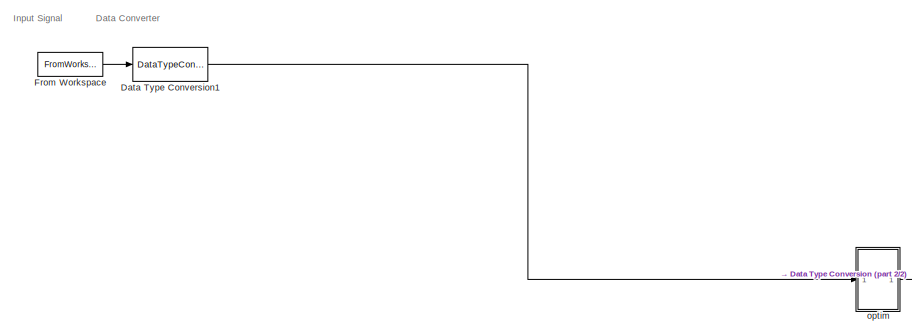
[diagram: root canvas - part 1/2, left side, full height]
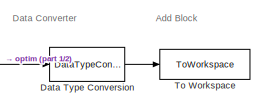
[diagram: root canvas - part 2/2, bottom right region]
MODEL slx_897801d703a7
KIND model
CONFIG AbsTol = auto
CONFIG EnableMultiTasking = off
CONFIG FixedStep = auto
CONFIG MaxStep = auto
CONFIG MinStep = auto
CONFIG RelTol = 1e-3
CONFIG SampleTimeConstraint = Unconstrained
CONFIG SolverName = VariableStepAuto
CONFIG StartTime = 0.0
CONFIG StopTime = 10
BLOCK [DataTypeConversion] Data Type Conversion
  OutDataTypeStr = double
  RndMeth = Floor
  SaturateOnIntegerOverflow = off
BLOCK [DataTypeConversion] Data Type Conversion1
  OutDataTypeStr = fixdt(1,W,D)
  RndMeth = Floor
  SaturateOnIntegerOverflow = off
BLOCK [FromWorkspace] From Workspace
  Interpolate = off
  OutputAfterFinalValue = Setting to zero
  SampleTime = 1
  VariableName = sig_in
  ZeroCross = off
BLOCK [ToWorkspace] To Workspace
  FixptAsFi = on
  MaxDataPoints = inf
  SampleTime = -1
  VariableName = simout
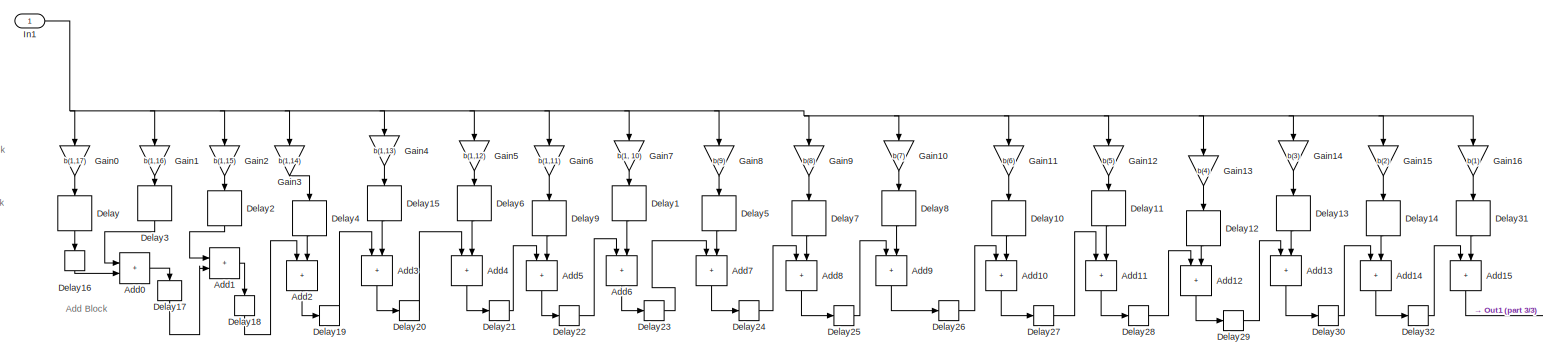
[diagram: optim - part 1/3, most of the canvas]
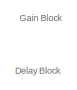
[diagram: optim - part 2/3, middle left region]
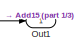
[diagram: optim - part 3/3, bottom right region]
BLOCK [SubSystem] optim
BLOCK [Sum] optim/Add0
  AccumDataTypeStr = fixdt(1,W,D)
  IconShape = rectangular
  OutDataTypeStr = fixdt(1,W,D)
BLOCK [Sum] optim/Add1
  AccumDataTypeStr = fixdt(1,W,D)
  IconShape = rectangular
  OutDataTypeStr = fixdt(1,W,D)
BLOCK [Sum] optim/Add10
  AccumDataTypeStr = fixdt(1,W,D)
  IconShape = rectangular
  NameLocation = left
  OutDataTypeStr = fixdt(1,W,D)
BLOCK [Sum] optim/Add11
  AccumDataTypeStr = fixdt(1,W,D)
  IconShape = rectangular
  NameLocation = left
  OutDataTypeStr = fixdt(1,W,D)
BLOCK [Sum] optim/Add12
  AccumDataTypeStr = fixdt(1,W,D)
  IconShape = rectangular
  NameLocation = left
  OutDataTypeStr = fixdt(1,W,D)
BLOCK [Sum] optim/Add13
  AccumDataTypeStr = fixdt(1,W,D)
  IconShape = rectangular
  NameLocation = left
  OutDataTypeStr = fixdt(1,W,D)
BLOCK [Sum] optim/Add14
  AccumDataTypeStr = fixdt(1,W,D)
  IconShape = rectangular
  NameLocation = left
  OutDataTypeStr = fixdt(1,W,D)
BLOCK [Sum] optim/Add15
  AccumDataTypeStr = fixdt(1,W,D)
  IconShape = rectangular
  NameLocation = left
  OutDataTypeStr = fixdt(1,W,D)
BLOCK [Sum] optim/Add2
  AccumDataTypeStr = fixdt(1,W,D)
  IconShape = rectangular
  NameLocation = left
  OutDataTypeStr = fixdt(1,W,D)
BLOCK [Sum] optim/Add3
  AccumDataTypeStr = fixdt(1,W,D)
  IconShape = rectangular
  NameLocation = left
  OutDataTypeStr = fixdt(1,W,D)
BLOCK [Sum] optim/Add4
  AccumDataTypeStr = fixdt(1,W,D)
  IconShape = rectangular
  NameLocation = left
  OutDataTypeStr = fixdt(1,W,D)
BLOCK [Sum] optim/Add5
  AccumDataTypeStr = fixdt(1,W,D)
  IconShape = rectangular
  NameLocation = left
  OutDataTypeStr = fixdt(1,W,D)
BLOCK [Sum] optim/Add6
  AccumDataTypeStr = fixdt(1,W,D)
  IconShape = rectangular
  NameLocation = left
  OutDataTypeStr = fixdt(1,W,D)
BLOCK [Sum] optim/Add7
  AccumDataTypeStr = fixdt(1,W,D)
  IconShape = rectangular
  NameLocation = left
  OutDataTypeStr = fixdt(1,W,D)
BLOCK [Sum] optim/Add8
  AccumDataTypeStr = fixdt(1,W,D)
  IconShape = rectangular
  NameLocation = left
  OutDataTypeStr = fixdt(1,W,D)
BLOCK [Sum] optim/Add9
  AccumDataTypeStr = fixdt(1,W,D)
  IconShape = rectangular
  NameLocation = left
  OutDataTypeStr = fixdt(1,W,D)
BLOCK [Delay] optim/Delay
  DelayLength = 1
  InputPortMap = u0
  NameLocation = left
BLOCK [Delay] optim/Delay1
  DelayLength = 1
  InputPortMap = u0
  NameLocation = left
BLOCK [Delay] optim/Delay10
  DelayLength = 1
  InputPortMap = u0
  NameLocation = left
BLOCK [Delay] optim/Delay11
  DelayLength = 1
  InputPortMap = u0
  NameLocation = left
BLOCK [Delay] optim/Delay12
  DelayLength = 1
  InputPortMap = u0
  NameLocation = left
BLOCK [Delay] optim/Delay13
  DelayLength = 1
  InputPortMap = u0
  NameLocation = left
BLOCK [Delay] optim/Delay14
  DelayLength = 1
  InputPortMap = u0
  NameLocation = left
BLOCK [Delay] optim/Delay15
  DelayLength = 1
  InputPortMap = u0
  NameLocation = left
BLOCK [Delay] optim/Delay16
  DelayLength = 1
  InputPortMap = u0
  NameLocation = left
BLOCK [Delay] optim/Delay17
  DelayLength = 1
  InputPortMap = u0
  NameLocation = left
BLOCK [Delay] optim/Delay18
  DelayLength = 1
  InputPortMap = u0
  NameLocation = left
BLOCK [Delay] optim/Delay19
  DelayLength = 1
  InputPortMap = u0
BLOCK [Delay] optim/Delay2
  DelayLength = 1
  InputPortMap = u0
  NameLocation = left
BLOCK [Delay] optim/Delay20
  DelayLength = 1
  InputPortMap = u0
BLOCK [Delay] optim/Delay21
  DelayLength = 1
  InputPortMap = u0
BLOCK [Delay] optim/Delay22
  DelayLength = 1
  InputPortMap = u0
BLOCK [Delay] optim/Delay23
  DelayLength = 1
  InputPortMap = u0
BLOCK [Delay] optim/Delay24
  DelayLength = 1
  InputPortMap = u0
BLOCK [Delay] optim/Delay25
  DelayLength = 1
  InputPortMap = u0
BLOCK [Delay] optim/Delay26
  DelayLength = 1
  InputPortMap = u0
BLOCK [Delay] optim/Delay27
  DelayLength = 1
  InputPortMap = u0
BLOCK [Delay] optim/Delay28
  DelayLength = 1
  InputPortMap = u0
BLOCK [Delay] optim/Delay29
  DelayLength = 1
  InputPortMap = u0
BLOCK [Delay] optim/Delay3
  DelayLength = 1
  InputPortMap = u0
  NameLocation = left
BLOCK [Delay] optim/Delay30
  DelayLength = 1
  InputPortMap = u0
BLOCK [Delay] optim/Delay31
  DelayLength = 1
  InputPortMap = u0
  NameLocation = left
BLOCK [Delay] optim/Delay32
  DelayLength = 1
  InputPortMap = u0
BLOCK [Delay] optim/Delay4
  DelayLength = 1
  InputPortMap = u0
  NameLocation = left
BLOCK [Delay] optim/Delay5
  DelayLength = 1
  InputPortMap = u0
  NameLocation = left
BLOCK [Delay] optim/Delay6
  DelayLength = 1
  InputPortMap = u0
  NameLocation = left
BLOCK [Delay] optim/Delay7
  DelayLength = 1
  InputPortMap = u0
  NameLocation = left
BLOCK [Delay] optim/Delay8
  DelayLength = 1
  InputPortMap = u0
  NameLocation = left
BLOCK [Delay] optim/Delay9
  DelayLength = 1
  InputPortMap = u0
  NameLocation = left
BLOCK [Gain] optim/Gain0
  Gain = b(1,17)
  NameLocation = left
  OutDataTypeStr = fixdt(1,Wc,Dc)
  ParamDataTypeStr = fixdt(1,Wg,Dg)
BLOCK [Gain] optim/Gain1
  Gain = b(1,16)
  NameLocation = left
  OutDataTypeStr = fixdt(1,Wc,Dc)
  ParamDataTypeStr = fixdt(1,Wg,Dg)
BLOCK [Gain] optim/Gain10
  Gain = b(7)
  NameLocation = left
  OutDataTypeStr = fixdt(1,Wc,Dc)
  ParamDataTypeStr = fixdt(1,Wg,Dg)
BLOCK [Gain] optim/Gain11
  Gain = b(6)
  NameLocation = left
  OutDataTypeStr = fixdt(1,Wc,Dc)
  ParamDataTypeStr = fixdt(1,Wg,Dg)
BLOCK [Gain] optim/Gain12
  Gain = b(5)
  NameLocation = left
  OutDataTypeStr = fixdt(1,Wc,Dc)
  ParamDataTypeStr = fixdt(1,Wg,Dg)
BLOCK [Gain] optim/Gain13
  Gain = b(4)
  NameLocation = left
  OutDataTypeStr = fixdt(1,Wc,Dc)
  ParamDataTypeStr = fixdt(1,Wg,Dg)
BLOCK [Gain] optim/Gain14
  Gain = b(3)
  NameLocation = left
  OutDataTypeStr = fixdt(1,Wc,Dc)
  ParamDataTypeStr = fixdt(1,Wg,Dg)
BLOCK [Gain] optim/Gain15
  Gain = b(2)
  NameLocation = left
  OutDataTypeStr = fixdt(1,Wc,Dc)
  ParamDataTypeStr = fixdt(1,Wg,Dg)
BLOCK [Gain] optim/Gain16
  Gain = b(1)
  NameLocation = left
  OutDataTypeStr = fixdt(1,Wc,Dc)
  ParamDataTypeStr = fixdt(1,Wg,Dg)
BLOCK [Gain] optim/Gain2
  Gain = b(1,15)
  NameLocation = left
  OutDataTypeStr = fixdt(1,Wc,Dc)
  ParamDataTypeStr = fixdt(1,Wg,Dg)
BLOCK [Gain] optim/Gain3
  Gain = b(1,14)
  NameLocation = left
  OutDataTypeStr = fixdt(1,Wc,Dc)
  ParamDataTypeStr = fixdt(1,Wg,Dg)
BLOCK [Gain] optim/Gain4
  Gain = b(1,13)
  NameLocation = left
  OutDataTypeStr = fixdt(1,Wc,Dc)
  ParamDataTypeStr = fixdt(1,Wg,Dg)
BLOCK [Gain] optim/Gain5
  Gain = b(1,12)
  NameLocation = left
  OutDataTypeStr = fixdt(1,Wc,Dc)
  ParamDataTypeStr = fixdt(1,Wg,Dg)
BLOCK [Gain] optim/Gain6
  Gain = b(1,11)
  NameLocation = left
  OutDataTypeStr = fixdt(1,Wc,Dc)
  ParamDataTypeStr = fixdt(1,Wg,Dg)
BLOCK [Gain] optim/Gain7
  Gain = b(1, 10)
  NameLocation = left
  OutDataTypeStr = fixdt(1,Wc,Dc)
  ParamDataTypeStr = fixdt(1,Wg,Dg)
BLOCK [Gain] optim/Gain8
  Gain = b(9)
  NameLocation = left
  OutDataTypeStr = fixdt(1,Wc,Dc)
  ParamDataTypeStr = fixdt(1,Wg,Dg)
BLOCK [Gain] optim/Gain9
  Gain = b(8)
  NameLocation = left
  OutDataTypeStr = fixdt(1,Wc,Dc)
  ParamDataTypeStr = fixdt(1,Wg,Dg)
BLOCK [Inport] optim/In1
BLOCK [Outport] optim/Out1
ANNOTATION (root): Add Block
ANNOTATION (root): Data Converter
ANNOTATION (root): Input Signal
ANNOTATION optim: Add Block
ANNOTATION optim: Delay Block
ANNOTATION optim: Gain Block
LINE Data Type Conversion1:1 -> optim:1
LINE Data Type Conversion:1 -> To Workspace:1
LINE From Workspace:1 -> Data Type Conversion1:1
LINE optim/Add0:1 -> optim/Delay17:1
LINE optim/Add10:1 -> optim/Delay27:1
LINE optim/Add11:1 -> optim/Delay28:1
LINE optim/Add12:1 -> optim/Delay29:1
LINE optim/Add13:1 -> optim/Delay30:1
LINE optim/Add14:1 -> optim/Delay32:1
LINE optim/Add15:1 -> optim/Out1:1
LINE optim/Add1:1 -> optim/Delay18:1
LINE optim/Add2:1 -> optim/Delay19:1
LINE optim/Add3:1 -> optim/Delay20:1
LINE optim/Add4:1 -> optim/Delay21:1
LINE optim/Add5:1 -> optim/Delay22:1
LINE optim/Add6:1 -> optim/Delay23:1
LINE optim/Add7:1 -> optim/Delay24:1
LINE optim/Add8:1 -> optim/Delay25:1
LINE optim/Add9:1 -> optim/Delay26:1
LINE optim/Delay10:1 -> optim/Add10:2
LINE optim/Delay11:1 -> optim/Add11:2
LINE optim/Delay12:1 -> optim/Add12:2
LINE optim/Delay13:1 -> optim/Add13:2
LINE optim/Delay14:1 -> optim/Add14:2
LINE optim/Delay15:1 -> optim/Add3:2
LINE optim/Delay16:1 -> optim/Add0:2
LINE optim/Delay17:1 -> optim/Add1:2
LINE optim/Delay18:1 -> optim/Add2:1
LINE optim/Delay19:1 -> optim/Add3:1
LINE optim/Delay1:1 -> optim/Add6:2
LINE optim/Delay20:1 -> optim/Add4:1
LINE optim/Delay21:1 -> optim/Add5:1
LINE optim/Delay22:1 -> optim/Add6:1
LINE optim/Delay23:1 -> optim/Add7:1
LINE optim/Delay24:1 -> optim/Add8:1
LINE optim/Delay25:1 -> optim/Add9:1
LINE optim/Delay26:1 -> optim/Add10:1
LINE optim/Delay27:1 -> optim/Add11:1
LINE optim/Delay28:1 -> optim/Add12:1
LINE optim/Delay29:1 -> optim/Add13:1
LINE optim/Delay2:1 -> optim/Add1:1
LINE optim/Delay30:1 -> optim/Add14:1
LINE optim/Delay31:1 -> optim/Add15:2
LINE optim/Delay32:1 -> optim/Add15:1
LINE optim/Delay3:1 -> optim/Add0:1
LINE optim/Delay4:1 -> optim/Add2:2
LINE optim/Delay5:1 -> optim/Add7:2
LINE optim/Delay6:1 -> optim/Add4:2
LINE optim/Delay7:1 -> optim/Add8:2
LINE optim/Delay8:1 -> optim/Add9:2
LINE optim/Delay9:1 -> optim/Add5:2
LINE optim/Delay:1 -> optim/Delay16:1
LINE optim/Gain0:1 -> optim/Delay:1
LINE optim/Gain10:1 -> optim/Delay8:1
LINE optim/Gain11:1 -> optim/Delay10:1
LINE optim/Gain12:1 -> optim/Delay11:1
LINE optim/Gain13:1 -> optim/Delay12:1
LINE optim/Gain14:1 -> optim/Delay13:1
LINE optim/Gain15:1 -> optim/Delay14:1
LINE optim/Gain16:1 -> optim/Delay31:1
LINE optim/Gain1:1 -> optim/Delay3:1
LINE optim/Gain2:1 -> optim/Delay2:1
LINE optim/Gain3:1 -> optim/Delay4:1
LINE optim/Gain4:1 -> optim/Delay15:1
LINE optim/Gain5:1 -> optim/Delay6:1
LINE optim/Gain6:1 -> optim/Delay9:1
LINE optim/Gain7:1 -> optim/Delay1:1
LINE optim/Gain8:1 -> optim/Delay5:1
LINE optim/Gain9:1 -> optim/Delay7:1
NET optim/In1:1 -> optim/Gain0:1, optim/Gain10:1, optim/Gain11:1, optim/Gain12:1, optim/Gain13:1, optim/Gain14:1, optim/Gain15:1, optim/Gain16:1, optim/Gain1:1, optim/Gain2:1, optim/Gain3:1, optim/Gain4:1, optim/Gain5:1, optim/Gain6:1, optim/Gain7:1, optim/Gain8:1, optim/Gain9:1
LINE optim:1 -> Data Type Conversion:1
note: NET lines group one-source signal fan-out (src -> all destinations, sorted); 1:1 wires keep LINE
